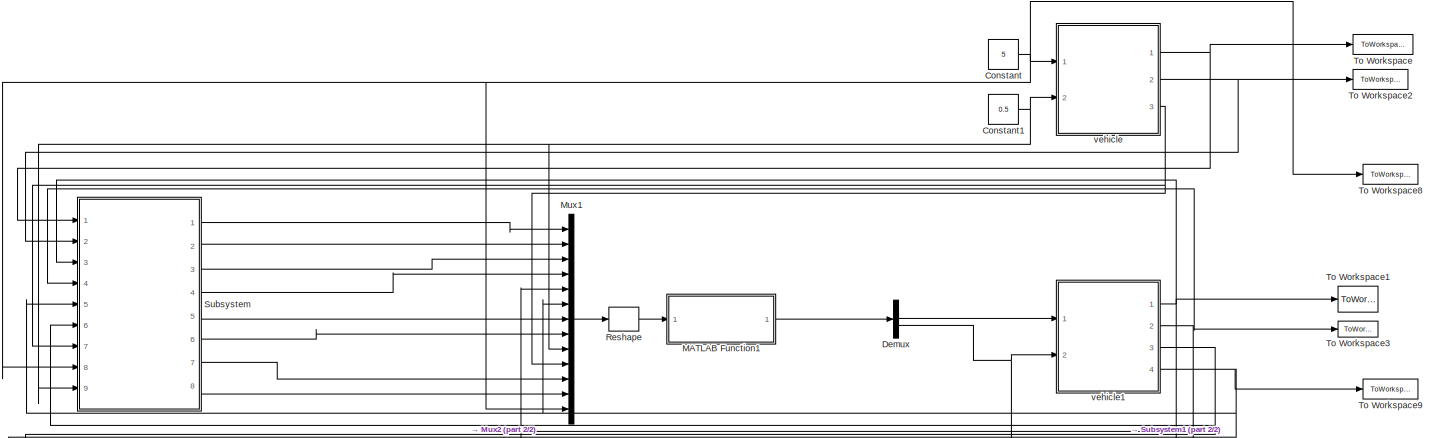
[diagram: root canvas - part 1/2, full width, top band]
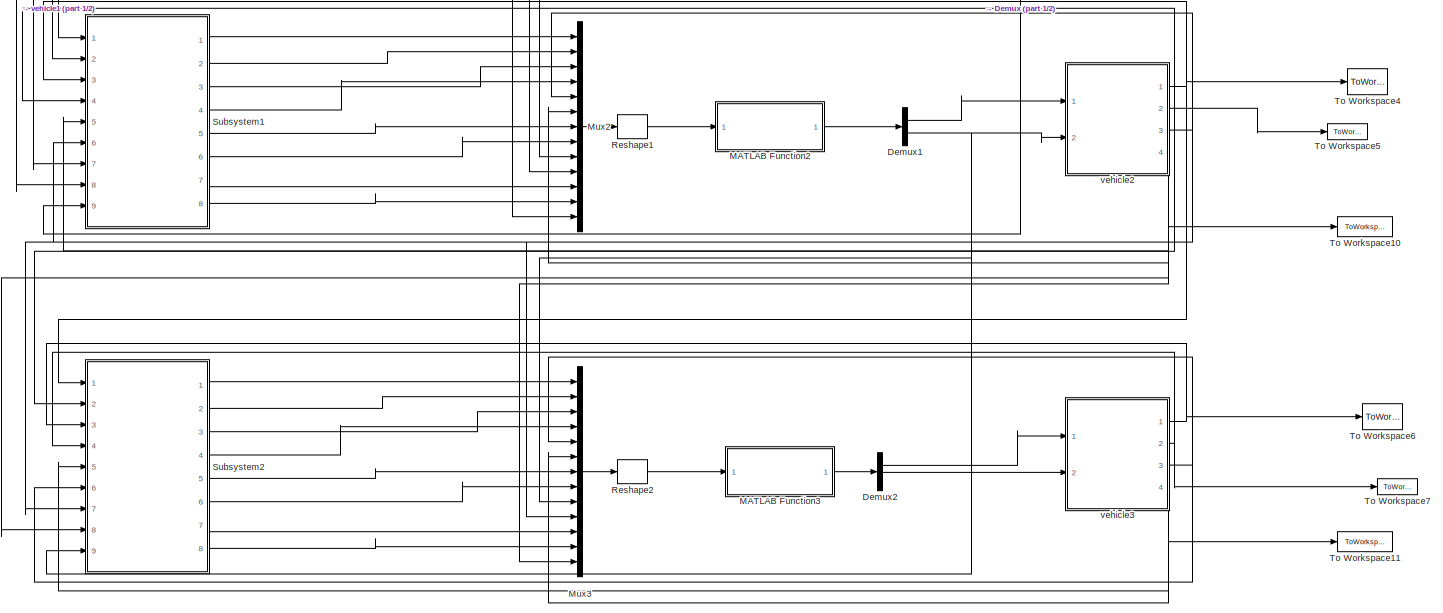
[diagram: root canvas - part 2/2, full width, bottom band]
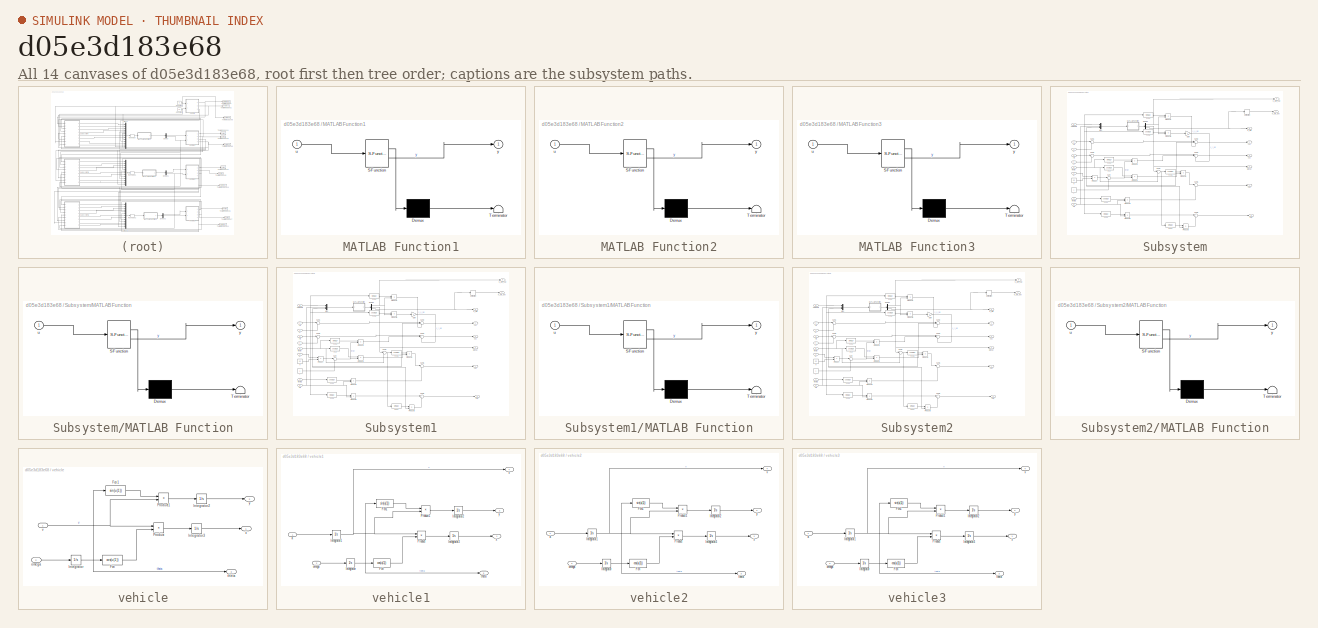
[diagram: thumbnail index - all 14 canvases of the model, root first then tree order]
MODEL slx_d05e3d183e68
KIND model
CONFIG AbsTol = auto
CONFIG EnableMultiTasking = off
CONFIG FixedStep = 0.01
CONFIG MaxStep = auto
CONFIG MinStep = auto
CONFIG RelTol = 1e-3
CONFIG SampleTimeConstraint = Unconstrained
CONFIG SolverName = FixedStepAuto
CONFIG StartTime = 0.0
CONFIG StopTime = 18
BLOCK [Constant] Constant
  Value = 5
BLOCK [Constant] Constant1
  Value = 0.5
BLOCK [Demux] Demux
  Outputs = 2
  Ports = [1, 2]
BLOCK [Demux] Demux1
  Outputs = 2
  Ports = [1, 2]
BLOCK [Demux] Demux2
  Outputs = 2
  Ports = [1, 2]
BLOCK [SubSystem] MATLAB Function1
  ErrorFcn = Stateflow.Translate.translate
  PermitHierarchicalResolution = ExplicitOnly
  Ports = [1, 1]
  RequestExecContextInheritance = off
  SFBlockType = MATLAB Function
  TreatAsAtomicUnit = on
BLOCK [Demux] MATLAB Function1/ Demux 
  Outputs = 1
  Ports = [1, 1]
BLOCK [S-Function] MATLAB Function1/ SFunction 
  EnableBusSupport = on
  FunctionName = sf_sfun
  PortCounts = [1 2]
  Ports = [1, 2]
  SFcnIsStateOwnerBlock = off
  SFunctionDeploymentMode = off
  Tag = Stateflow S-Function 1
BLOCK [Terminator] MATLAB Function1/ Terminator 
BLOCK [Inport] MATLAB Function1/u
BLOCK [Outport] MATLAB Function1/y
BLOCK [SubSystem] MATLAB Function2
  ErrorFcn = Stateflow.Translate.translate
  PermitHierarchicalResolution = ExplicitOnly
  Ports = [1, 1]
  RequestExecContextInheritance = off
  SFBlockType = MATLAB Function
  TreatAsAtomicUnit = on
BLOCK [Demux] MATLAB Function2/ Demux 
  Outputs = 1
  Ports = [1, 1]
BLOCK [S-Function] MATLAB Function2/ SFunction 
  EnableBusSupport = on
  FunctionName = sf_sfun
  PortCounts = [1 2]
  Ports = [1, 2]
  SFcnIsStateOwnerBlock = off
  SFunctionDeploymentMode = off
  Tag = Stateflow S-Function 3
BLOCK [Terminator] MATLAB Function2/ Terminator 
BLOCK [Inport] MATLAB Function2/u
BLOCK [Outport] MATLAB Function2/y
BLOCK [SubSystem] MATLAB Function3
  ErrorFcn = Stateflow.Translate.translate
  PermitHierarchicalResolution = ExplicitOnly
  Ports = [1, 1]
  RequestExecContextInheritance = off
  SFBlockType = MATLAB Function
  TreatAsAtomicUnit = on
BLOCK [Demux] MATLAB Function3/ Demux 
  Outputs = 1
  Ports = [1, 1]
BLOCK [S-Function] MATLAB Function3/ SFunction 
  EnableBusSupport = on
  FunctionName = sf_sfun
  PortCounts = [1 2]
  Ports = [1, 2]
  SFcnIsStateOwnerBlock = off
  SFunctionDeploymentMode = off
  Tag = Stateflow S-Function 6
BLOCK [Terminator] MATLAB Function3/ Terminator 
BLOCK [Inport] MATLAB Function3/u
BLOCK [Outport] MATLAB Function3/y
BLOCK [Mux] Mux1
  DisplayOption = bar
  Inputs = 13
  Ports = [13, 1]
BLOCK [Mux] Mux2
  DisplayOption = bar
  Inputs = 13
  Ports = [13, 1]
BLOCK [Mux] Mux3
  DisplayOption = bar
  Inputs = 13
  Ports = [13, 1]
BLOCK [Reshape] Reshape
  OutputDimensionality = Customize
  OutputDimensions = [1,13]
  Ports = [1, 1]
BLOCK [Reshape] Reshape1
  OutputDimensionality = Customize
  OutputDimensions = [1,13]
  Ports = [1, 1]
BLOCK [Reshape] Reshape2
  OutputDimensionality = Customize
  OutputDimensions = [1,13]
  Ports = [1, 1]
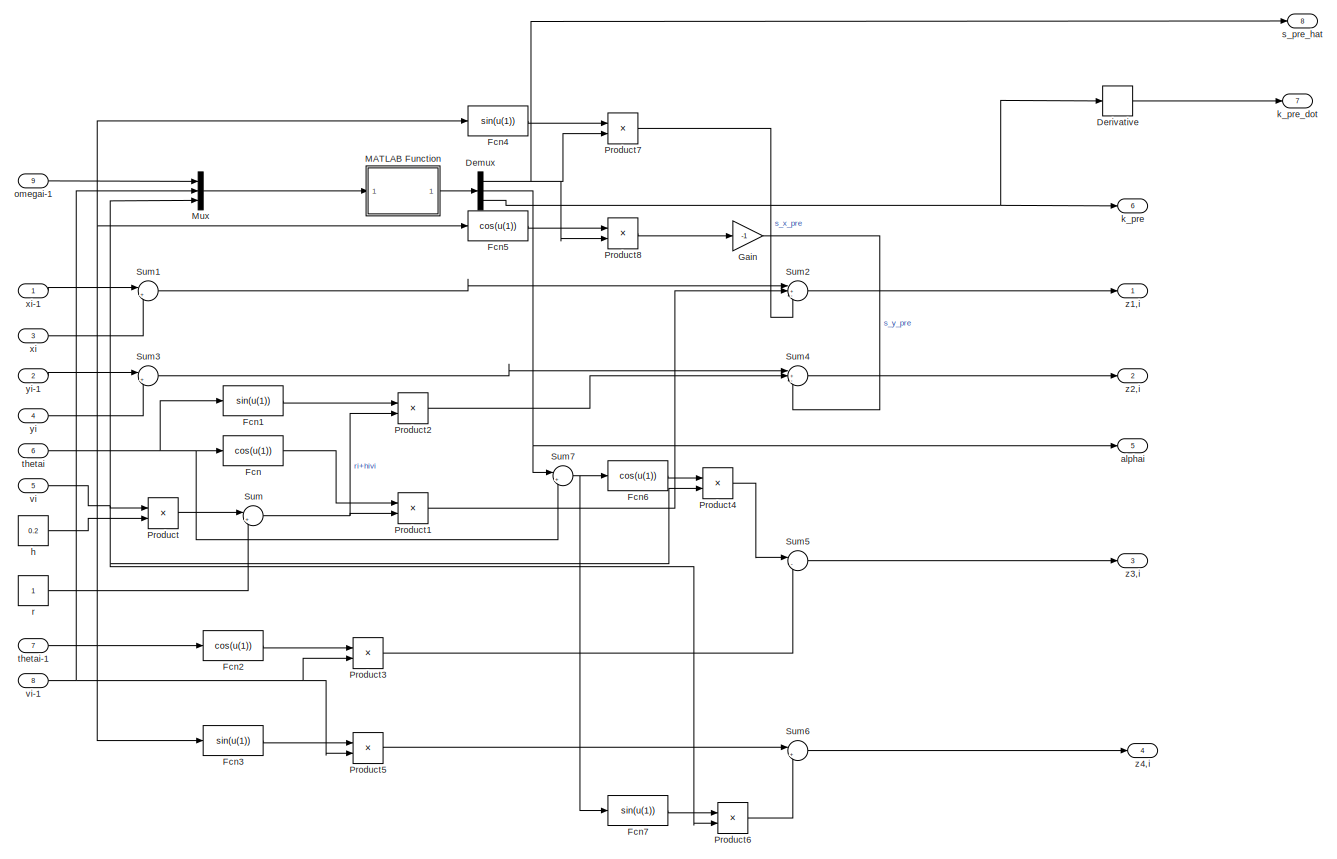
[diagram: Subsystem - part 1/1, most of the canvas]
BLOCK [SubSystem] Subsystem
  Ports = [9, 8]
  RequestExecContextInheritance = off
BLOCK [Demux] Subsystem/Demux
  Outputs = 3
  Ports = [1, 3]
BLOCK [Derivative] Subsystem/Derivative
BLOCK [Fcn] Subsystem/Fcn
  Expr = cos(u(1))
BLOCK [Fcn] Subsystem/Fcn1
  Expr = sin(u(1))
BLOCK [Fcn] Subsystem/Fcn2
  Expr = cos(u(1))
BLOCK [Fcn] Subsystem/Fcn3
  Expr = sin(u(1))
BLOCK [Fcn] Subsystem/Fcn4
  Expr = sin(u(1))
BLOCK [Fcn] Subsystem/Fcn5
  Expr = cos(u(1))
BLOCK [Fcn] Subsystem/Fcn6
  Expr = cos(u(1))
BLOCK [Fcn] Subsystem/Fcn7
  Expr = sin(u(1))
BLOCK [Gain] Subsystem/Gain
  Gain = -1
BLOCK [SubSystem] Subsystem/MATLAB Function
  ErrorFcn = Stateflow.Translate.translate
  PermitHierarchicalResolution = ExplicitOnly
  Ports = [1, 1]
  RequestExecContextInheritance = off
  SFBlockType = MATLAB Function
  TreatAsAtomicUnit = on
BLOCK [Demux] Subsystem/MATLAB Function/ Demux 
  Outputs = 1
  Ports = [1, 1]
BLOCK [S-Function] Subsystem/MATLAB Function/ SFunction 
  EnableBusSupport = on
  FunctionName = sf_sfun
  PortCounts = [1 2]
  Ports = [1, 2]
  SFcnIsStateOwnerBlock = off
  SFunctionDeploymentMode = off
  Tag = Stateflow S-Function 4
BLOCK [Terminator] Subsystem/MATLAB Function/ Terminator 
BLOCK [Inport] Subsystem/MATLAB Function/u
BLOCK [Outport] Subsystem/MATLAB Function/y
BLOCK [Mux] Subsystem/Mux
  DisplayOption = bar
  Inputs = 3
  Ports = [3, 1]
BLOCK [Product] Subsystem/Product
  Ports = [2, 1]
BLOCK [Product] Subsystem/Product1
  Ports = [2, 1]
BLOCK [Product] Subsystem/Product2
  Ports = [2, 1]
BLOCK [Product] Subsystem/Product3
  Ports = [2, 1]
BLOCK [Product] Subsystem/Product4
  Ports = [2, 1]
BLOCK [Product] Subsystem/Product5
  Ports = [2, 1]
BLOCK [Product] Subsystem/Product6
  Ports = [2, 1]
BLOCK [Product] Subsystem/Product7
  Ports = [2, 1]
BLOCK [Product] Subsystem/Product8
  Ports = [2, 1]
BLOCK [Sum] Subsystem/Sum
  Inputs = |++
  Ports = [2, 1]
BLOCK [Sum] Subsystem/Sum1
  Inputs = |+-
  Ports = [2, 1]
BLOCK [Sum] Subsystem/Sum2
  Inputs = |+-+
  Ports = [3, 1]
BLOCK [Sum] Subsystem/Sum3
  Inputs = |+-
  Ports = [2, 1]
BLOCK [Sum] Subsystem/Sum4
  Inputs = |+-+
  Ports = [3, 1]
BLOCK [Sum] Subsystem/Sum5
  Inputs = |-+
  Ports = [2, 1]
BLOCK [Sum] Subsystem/Sum6
  Inputs = |+-
  Ports = [2, 1]
BLOCK [Sum] Subsystem/Sum7
  Inputs = |++
  NameLocation = top
  Ports = [2, 1]
BLOCK [Outport] Subsystem/alphai
  Port = 5
BLOCK [Constant] Subsystem/h
  Value = 0.2
BLOCK [Outport] Subsystem/k_pre
  Port = 6
BLOCK [Outport] Subsystem/k_pre_dot
  Port = 7
BLOCK [Inport] Subsystem/omegai-1
  Port = 9
BLOCK [Constant] Subsystem/r
BLOCK [Outport] Subsystem/s_pre_hat
  Port = 8
BLOCK [Inport] Subsystem/thetai
  Port = 6
BLOCK [Inport] Subsystem/thetai-1
  Port = 7
BLOCK [Inport] Subsystem/vi
  Port = 5
BLOCK [Inport] Subsystem/vi-1
  Port = 8
BLOCK [Inport] Subsystem/xi
  Port = 3
BLOCK [Inport] Subsystem/xi-1
BLOCK [Inport] Subsystem/yi
  Port = 4
BLOCK [Inport] Subsystem/yi-1
  Port = 2
BLOCK [Outport] Subsystem/z1,i
BLOCK [Outport] Subsystem/z2,i
  Port = 2
BLOCK [Outport] Subsystem/z3,i
  Port = 3
BLOCK [Outport] Subsystem/z4,i
  Port = 4
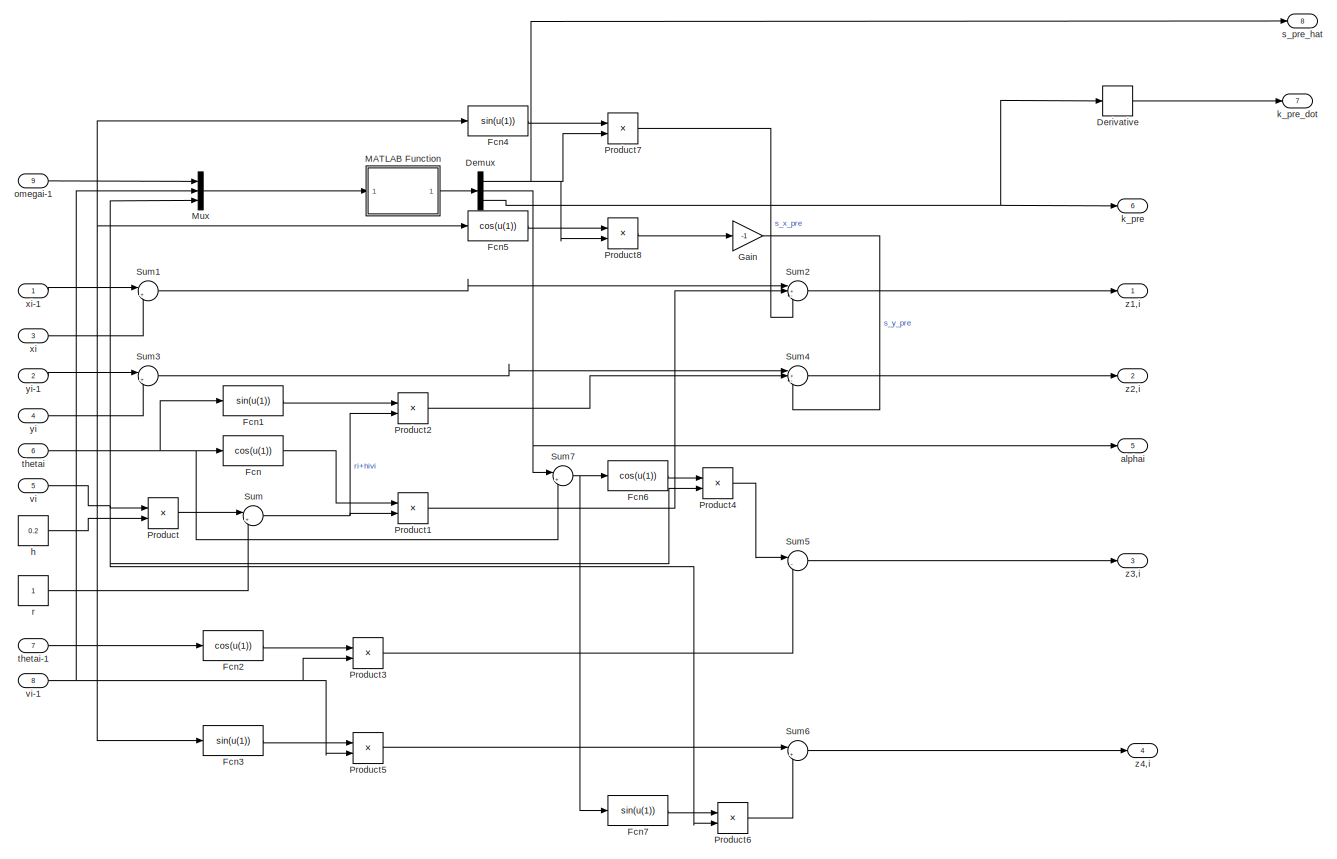
[diagram: Subsystem1 - part 1/1, most of the canvas]
BLOCK [SubSystem] Subsystem1
  Ports = [9, 8]
  RequestExecContextInheritance = off
BLOCK [Demux] Subsystem1/Demux
  Outputs = 3
  Ports = [1, 3]
BLOCK [Derivative] Subsystem1/Derivative
BLOCK [Fcn] Subsystem1/Fcn
  Expr = cos(u(1))
BLOCK [Fcn] Subsystem1/Fcn1
  Expr = sin(u(1))
BLOCK [Fcn] Subsystem1/Fcn2
  Expr = cos(u(1))
BLOCK [Fcn] Subsystem1/Fcn3
  Expr = sin(u(1))
BLOCK [Fcn] Subsystem1/Fcn4
  Expr = sin(u(1))
BLOCK [Fcn] Subsystem1/Fcn5
  Expr = cos(u(1))
BLOCK [Fcn] Subsystem1/Fcn6
  Expr = cos(u(1))
BLOCK [Fcn] Subsystem1/Fcn7
  Expr = sin(u(1))
BLOCK [Gain] Subsystem1/Gain
  Gain = -1
BLOCK [SubSystem] Subsystem1/MATLAB Function
  ErrorFcn = Stateflow.Translate.translate
  PermitHierarchicalResolution = ExplicitOnly
  Ports = [1, 1]
  RequestExecContextInheritance = off
  SFBlockType = MATLAB Function
  TreatAsAtomicUnit = on
BLOCK [Demux] Subsystem1/MATLAB Function/ Demux 
  Outputs = 1
  Ports = [1, 1]
BLOCK [S-Function] Subsystem1/MATLAB Function/ SFunction 
  EnableBusSupport = on
  FunctionName = sf_sfun
  PortCounts = [1 2]
  Ports = [1, 2]
  SFcnIsStateOwnerBlock = off
  SFunctionDeploymentMode = off
  Tag = Stateflow S-Function 2
BLOCK [Terminator] Subsystem1/MATLAB Function/ Terminator 
BLOCK [Inport] Subsystem1/MATLAB Function/u
BLOCK [Outport] Subsystem1/MATLAB Function/y
BLOCK [Mux] Subsystem1/Mux
  DisplayOption = bar
  Inputs = 3
  Ports = [3, 1]
BLOCK [Product] Subsystem1/Product
  Ports = [2, 1]
BLOCK [Product] Subsystem1/Product1
  Ports = [2, 1]
BLOCK [Product] Subsystem1/Product2
  Ports = [2, 1]
BLOCK [Product] Subsystem1/Product3
  Ports = [2, 1]
BLOCK [Product] Subsystem1/Product4
  Ports = [2, 1]
BLOCK [Product] Subsystem1/Product5
  Ports = [2, 1]
BLOCK [Product] Subsystem1/Product6
  Ports = [2, 1]
BLOCK [Product] Subsystem1/Product7
  Ports = [2, 1]
BLOCK [Product] Subsystem1/Product8
  Ports = [2, 1]
BLOCK [Sum] Subsystem1/Sum
  Inputs = |++
  Ports = [2, 1]
BLOCK [Sum] Subsystem1/Sum1
  Inputs = |+-
  Ports = [2, 1]
BLOCK [Sum] Subsystem1/Sum2
  Inputs = |+-+
  Ports = [3, 1]
BLOCK [Sum] Subsystem1/Sum3
  Inputs = |+-
  Ports = [2, 1]
BLOCK [Sum] Subsystem1/Sum4
  Inputs = |+-+
  Ports = [3, 1]
BLOCK [Sum] Subsystem1/Sum5
  Inputs = |-+
  Ports = [2, 1]
BLOCK [Sum] Subsystem1/Sum6
  Inputs = |+-
  Ports = [2, 1]
BLOCK [Sum] Subsystem1/Sum7
  Inputs = |++
  NameLocation = top
  Ports = [2, 1]
BLOCK [Outport] Subsystem1/alphai
  Port = 5
BLOCK [Constant] Subsystem1/h
  Value = 0.2
BLOCK [Outport] Subsystem1/k_pre
  Port = 6
BLOCK [Outport] Subsystem1/k_pre_dot
  Port = 7
BLOCK [Inport] Subsystem1/omegai-1
  Port = 9
BLOCK [Constant] Subsystem1/r
BLOCK [Outport] Subsystem1/s_pre_hat
  Port = 8
BLOCK [Inport] Subsystem1/thetai
  Port = 6
BLOCK [Inport] Subsystem1/thetai-1
  Port = 7
BLOCK [Inport] Subsystem1/vi
  Port = 5
BLOCK [Inport] Subsystem1/vi-1
  Port = 8
BLOCK [Inport] Subsystem1/xi
  Port = 3
BLOCK [Inport] Subsystem1/xi-1
BLOCK [Inport] Subsystem1/yi
  Port = 4
BLOCK [Inport] Subsystem1/yi-1
  Port = 2
BLOCK [Outport] Subsystem1/z1,i
BLOCK [Outport] Subsystem1/z2,i
  Port = 2
BLOCK [Outport] Subsystem1/z3,i
  Port = 3
BLOCK [Outport] Subsystem1/z4,i
  Port = 4
BLOCK [SubSystem] Subsystem2
  Ports = [9, 8]
  RequestExecContextInheritance = off
BLOCK [Demux] Subsystem2/Demux
  Outputs = 3
  Ports = [1, 3]
BLOCK [Derivative] Subsystem2/Derivative
BLOCK [Fcn] Subsystem2/Fcn
  Expr = cos(u(1))
BLOCK [Fcn] Subsystem2/Fcn1
  Expr = sin(u(1))
BLOCK [Fcn] Subsystem2/Fcn2
  Expr = cos(u(1))
BLOCK [Fcn] Subsystem2/Fcn3
  Expr = sin(u(1))
BLOCK [Fcn] Subsystem2/Fcn4
  Expr = sin(u(1))
BLOCK [Fcn] Subsystem2/Fcn5
  Expr = cos(u(1))
BLOCK [Fcn] Subsystem2/Fcn6
  Expr = cos(u(1))
BLOCK [Fcn] Subsystem2/Fcn7
  Expr = sin(u(1))
BLOCK [Gain] Subsystem2/Gain
  Gain = -1
BLOCK [SubSystem] Subsystem2/MATLAB Function
  ErrorFcn = Stateflow.Translate.translate
  PermitHierarchicalResolution = ExplicitOnly
  Ports = [1, 1]
  RequestExecContextInheritance = off
  SFBlockType = MATLAB Function
  TreatAsAtomicUnit = on
BLOCK [Demux] Subsystem2/MATLAB Function/ Demux 
  Outputs = 1
  Ports = [1, 1]
BLOCK [S-Function] Subsystem2/MATLAB Function/ SFunction 
  EnableBusSupport = on
  FunctionName = sf_sfun
  PortCounts = [1 2]
  Ports = [1, 2]
  SFcnIsStateOwnerBlock = off
  SFunctionDeploymentMode = off
  Tag = Stateflow S-Function 5
BLOCK [Terminator] Subsystem2/MATLAB Function/ Terminator 
BLOCK [Inport] Subsystem2/MATLAB Function/u
BLOCK [Outport] Subsystem2/MATLAB Function/y
BLOCK [Mux] Subsystem2/Mux
  DisplayOption = bar
  Inputs = 3
  Ports = [3, 1]
BLOCK [Product] Subsystem2/Product
  Ports = [2, 1]
BLOCK [Product] Subsystem2/Product1
  Ports = [2, 1]
BLOCK [Product] Subsystem2/Product2
  Ports = [2, 1]
BLOCK [Product] Subsystem2/Product3
  Ports = [2, 1]
BLOCK [Product] Subsystem2/Product4
  Ports = [2, 1]
BLOCK [Product] Subsystem2/Product5
  Ports = [2, 1]
BLOCK [Product] Subsystem2/Product6
  Ports = [2, 1]
BLOCK [Product] Subsystem2/Product7
  Ports = [2, 1]
BLOCK [Product] Subsystem2/Product8
  Ports = [2, 1]
BLOCK [Sum] Subsystem2/Sum
  Inputs = |++
  Ports = [2, 1]
BLOCK [Sum] Subsystem2/Sum1
  Inputs = |+-
  Ports = [2, 1]
BLOCK [Sum] Subsystem2/Sum2
  Inputs = |+-+
  Ports = [3, 1]
BLOCK [Sum] Subsystem2/Sum3
  Inputs = |+-
  Ports = [2, 1]
BLOCK [Sum] Subsystem2/Sum4
  Inputs = |+-+
  Ports = [3, 1]
BLOCK [Sum] Subsystem2/Sum5
  Inputs = |-+
  Ports = [2, 1]
BLOCK [Sum] Subsystem2/Sum6
  Inputs = |+-
  Ports = [2, 1]
BLOCK [Sum] Subsystem2/Sum7
  Inputs = |++
  NameLocation = top
  Ports = [2, 1]
BLOCK [Outport] Subsystem2/alphai
  Port = 5
BLOCK [Constant] Subsystem2/h
  Value = 0.2
BLOCK [Outport] Subsystem2/k_pre
  Port = 6
BLOCK [Outport] Subsystem2/k_pre_dot
  Port = 7
BLOCK [Inport] Subsystem2/omegai-1
  Port = 9
BLOCK [Constant] Subsystem2/r
BLOCK [Outport] Subsystem2/s_pre_hat
  Port = 8
BLOCK [Inport] Subsystem2/thetai
  Port = 6
BLOCK [Inport] Subsystem2/thetai-1
  Port = 7
BLOCK [Inport] Subsystem2/vi
  Port = 5
BLOCK [Inport] Subsystem2/vi-1
  Port = 8
BLOCK [Inport] Subsystem2/xi
  Port = 3
BLOCK [Inport] Subsystem2/xi-1
BLOCK [Inport] Subsystem2/yi
  Port = 4
BLOCK [Inport] Subsystem2/yi-1
  Port = 2
BLOCK [Outport] Subsystem2/z1,i
BLOCK [Outport] Subsystem2/z2,i
  Port = 2
BLOCK [Outport] Subsystem2/z3,i
  Port = 3
BLOCK [Outport] Subsystem2/z4,i
  Port = 4
BLOCK [ToWorkspace] To Workspace
  FixptAsFi = on
  MaxDataPoints = inf
  Ports = [1]
  SampleTime = -1
  Save2DSignal = 2-D array (concatenate along first dimension)
  VariableName = x1
BLOCK [ToWorkspace] To Workspace1
  FixptAsFi = on
  MaxDataPoints = inf
  Ports = [1]
  SampleTime = -1
  Save2DSignal = 2-D array (concatenate along first dimension)
  VariableName = x2
BLOCK [ToWorkspace] To Workspace10
  FixptAsFi = on
  MaxDataPoints = inf
  Ports = [1]
  SampleTime = -1
  Save2DSignal = 2-D array (concatenate along first dimension)
  SaveFormat = Timeseries
  VariableName = v3
BLOCK [ToWorkspace] To Workspace11
  FixptAsFi = on
  MaxDataPoints = inf
  Ports = [1]
  SampleTime = -1
  Save2DSignal = 2-D array (concatenate along first dimension)
  SaveFormat = Timeseries
  VariableName = v4
BLOCK [ToWorkspace] To Workspace2
  FixptAsFi = on
  MaxDataPoints = inf
  Ports = [1]
  SampleTime = -1
  Save2DSignal = 2-D array (concatenate along first dimension)
  VariableName = y1
BLOCK [ToWorkspace] To Workspace3
  FixptAsFi = on
  MaxDataPoints = inf
  Ports = [1]
  SampleTime = -1
  Save2DSignal = 2-D array (concatenate along first dimension)
  VariableName = y2
BLOCK [ToWorkspace] To Workspace4
  FixptAsFi = on
  MaxDataPoints = inf
  Ports = [1]
  SampleTime = -1
  Save2DSignal = 2-D array (concatenate along first dimension)
  VariableName = x3
BLOCK [ToWorkspace] To Workspace5
  FixptAsFi = on
  MaxDataPoints = inf
  Ports = [1]
  SampleTime = -1
  Save2DSignal = 2-D array (concatenate along first dimension)
  VariableName = y3
BLOCK [ToWorkspace] To Workspace6
  FixptAsFi = on
  MaxDataPoints = inf
  Ports = [1]
  SampleTime = -1
  Save2DSignal = 2-D array (concatenate along first dimension)
  VariableName = x4
BLOCK [ToWorkspace] To Workspace7
  FixptAsFi = on
  MaxDataPoints = inf
  Ports = [1]
  SampleTime = -1
  Save2DSignal = 2-D array (concatenate along first dimension)
  VariableName = y4
BLOCK [ToWorkspace] To Workspace8
  FixptAsFi = on
  MaxDataPoints = inf
  Ports = [1]
  SampleTime = -1
  Save2DSignal = 2-D array (concatenate along first dimension)
  SaveFormat = Timeseries
  VariableName = v1
BLOCK [ToWorkspace] To Workspace9
  FixptAsFi = on
  MaxDataPoints = inf
  Ports = [1]
  SampleTime = -1
  Save2DSignal = 2-D array (concatenate along first dimension)
  SaveFormat = Timeseries
  VariableName = v2
BLOCK [SubSystem] vehicle
  Ports = [2, 3]
  RequestExecContextInheritance = off
BLOCK [Fcn] vehicle/Fcn
  Expr = cos(u(1))
BLOCK [Fcn] vehicle/Fcn1
  Expr = sin(u(1))
BLOCK [Integrator] vehicle/Integrator
  Ports = [1, 1]
BLOCK [Integrator] vehicle/Integrator2
  Ports = [1, 1]
BLOCK [Integrator] vehicle/Integrator3
  Ports = [1, 1]
BLOCK [Product] vehicle/Product
  Ports = [2, 1]
BLOCK [Product] vehicle/Product1
  Ports = [2, 1]
BLOCK [Inport] vehicle/omega
  Port = 2
BLOCK [Outport] vehicle/theta
  Port = 3
BLOCK [Inport] vehicle/v
BLOCK [Outport] vehicle/x
BLOCK [Outport] vehicle/y
  Port = 2
BLOCK [SubSystem] vehicle1
  Ports = [2, 4]
  RequestExecContextInheritance = off
BLOCK [Fcn] vehicle1/Fcn
  Expr = cos(u(1))
BLOCK [Fcn] vehicle1/Fcn1
  Expr = sin(u(1))
BLOCK [Integrator] vehicle1/Integrator
  Ports = [1, 1]
BLOCK [Integrator] vehicle1/Integrator1
  InitialCondition = 5
  LowerSaturationLimit = 0
  Ports = [1, 1]
BLOCK [Integrator] vehicle1/Integrator2
  InitialCondition = 2
  Ports = [1, 1]
BLOCK [Integrator] vehicle1/Integrator3
  InitialCondition = -2
  Ports = [1, 1]
BLOCK [Product] vehicle1/Product
  Ports = [2, 1]
BLOCK [Product] vehicle1/Product1
  Ports = [2, 1]
BLOCK [Inport] vehicle1/a
BLOCK [Inport] vehicle1/omega
  Port = 2
BLOCK [Outport] vehicle1/theta
  Port = 3
BLOCK [Outport] vehicle1/v
  Port = 4
BLOCK [Outport] vehicle1/x
BLOCK [Outport] vehicle1/y
  Port = 2
BLOCK [SubSystem] vehicle2
  Ports = [2, 4]
  RequestExecContextInheritance = off
BLOCK [Fcn] vehicle2/Fcn
  Expr = cos(u(1))
BLOCK [Fcn] vehicle2/Fcn1
  Expr = sin(u(1))
BLOCK [Integrator] vehicle2/Integrator
  Ports = [1, 1]
BLOCK [Integrator] vehicle2/Integrator1
  InitialCondition = 5
  Ports = [1, 1]
BLOCK [Integrator] vehicle2/Integrator2
  InitialCondition = 4
  Ports = [1, 1]
BLOCK [Integrator] vehicle2/Integrator3
  InitialCondition = -4
  Ports = [1, 1]
BLOCK [Product] vehicle2/Product
  Ports = [2, 1]
BLOCK [Product] vehicle2/Product1
  Ports = [2, 1]
BLOCK [Inport] vehicle2/a
BLOCK [Inport] vehicle2/omega
  Port = 2
BLOCK [Outport] vehicle2/theta
  Port = 3
BLOCK [Outport] vehicle2/v
  Port = 4
BLOCK [Outport] vehicle2/x
BLOCK [Outport] vehicle2/y
  Port = 2
BLOCK [SubSystem] vehicle3
  Ports = [2, 4]
  RequestExecContextInheritance = off
BLOCK [Fcn] vehicle3/Fcn
  Expr = cos(u(1))
BLOCK [Fcn] vehicle3/Fcn1
  Expr = sin(u(1))
BLOCK [Integrator] vehicle3/Integrator
  Ports = [1, 1]
BLOCK [Integrator] vehicle3/Integrator1
  InitialCondition = 5
  Ports = [1, 1]
BLOCK [Integrator] vehicle3/Integrator2
  InitialCondition = 6
  Ports = [1, 1]
BLOCK [Integrator] vehicle3/Integrator3
  InitialCondition = -6
  Ports = [1, 1]
BLOCK [Product] vehicle3/Product
  Ports = [2, 1]
BLOCK [Product] vehicle3/Product1
  Ports = [2, 1]
BLOCK [Inport] vehicle3/a
BLOCK [Inport] vehicle3/omega
  Port = 2
BLOCK [Outport] vehicle3/theta
  Port = 3
BLOCK [Outport] vehicle3/v
  Port = 4
BLOCK [Outport] vehicle3/x
BLOCK [Outport] vehicle3/y
  Port = 2
NET Constant1:1 -> Mux1:9, Subsystem:9, vehicle:2
NET Constant:1 -> Mux1:13, Subsystem:8, To Workspace8:1, vehicle:1
LINE Demux1:1 -> vehicle2:1
NET Demux1:2 -> Mux3:9, Subsystem2:9, vehicle2:2
LINE Demux2:1 -> vehicle3:1
LINE Demux2:2 -> vehicle3:2
LINE Demux:1 -> vehicle1:1
NET Demux:2 -> Mux2:9, Subsystem1:9, vehicle1:2
LINE MATLAB Function1:1 -> Demux:1
LINE MATLAB Function2:1 -> Demux1:1
LINE MATLAB Function3:1 -> Demux2:1
LINE Mux1:1 -> Reshape:1
LINE Mux2:1 -> Reshape1:1
LINE Mux3:1 -> Reshape2:1
LINE Reshape1:1 -> MATLAB Function2:1
LINE Reshape2:1 -> MATLAB Function3:1
LINE Reshape:1 -> MATLAB Function1:1
NET Subsystem/Demux:1 -> Subsystem/Product7:2, Subsystem/Product8:2, Subsystem/s_pre_hat:1
NET Subsystem/Demux:2 -> Subsystem/Sum7:1, Subsystem/alphai:1
NET Subsystem/Demux:3 -> Subsystem/Derivative:1, Subsystem/k_pre:1
LINE Subsystem/Derivative:1 -> Subsystem/k_pre_dot:1
LINE Subsystem/Fcn1:1 -> Subsystem/Product2:1
LINE Subsystem/Fcn2:1 -> Subsystem/Product3:1
LINE Subsystem/Fcn3:1 -> Subsystem/Product5:1
LINE Subsystem/Fcn4:1 -> Subsystem/Product7:1
LINE Subsystem/Fcn5:1 -> Subsystem/Product8:1
LINE Subsystem/Fcn6:1 -> Subsystem/Product4:1
LINE Subsystem/Fcn7:1 -> Subsystem/Product6:1
LINE Subsystem/Fcn:1 -> Subsystem/Product1:1
LINE Subsystem/Gain:1 -> Subsystem/Sum4:3
LINE Subsystem/MATLAB Function:1 -> Subsystem/Demux:1
LINE Subsystem/Mux:1 -> Subsystem/MATLAB Function:1
LINE Subsystem/Product1:1 -> Subsystem/Sum2:2
LINE Subsystem/Product2:1 -> Subsystem/Sum4:2
LINE Subsystem/Product3:1 -> Subsystem/Sum5:2
LINE Subsystem/Product4:1 -> Subsystem/Sum5:1
LINE Subsystem/Product5:1 -> Subsystem/Sum6:1
LINE Subsystem/Product6:1 -> Subsystem/Sum6:2
LINE Subsystem/Product7:1 -> Subsystem/Sum2:3
LINE Subsystem/Product8:1 -> Subsystem/Gain:1
LINE Subsystem/Product:1 -> Subsystem/Sum:1
LINE Subsystem/Sum1:1 -> Subsystem/Sum2:1
LINE Subsystem/Sum2:1 -> Subsystem/z1,i:1
LINE Subsystem/Sum3:1 -> Subsystem/Sum4:1
LINE Subsystem/Sum4:1 -> Subsystem/z2,i:1
LINE Subsystem/Sum5:1 -> Subsystem/z3,i:1
LINE Subsystem/Sum6:1 -> Subsystem/z4,i:1
NET Subsystem/Sum7:1 -> Subsystem/Fcn6:1, Subsystem/Fcn7:1
NET Subsystem/Sum:1 -> Subsystem/Product1:2, Subsystem/Product2:2
LINE Subsystem/h:1 -> Subsystem/Product:2
LINE Subsystem/omegai-1:1 -> Subsystem/Mux:1
LINE Subsystem/r:1 -> Subsystem/Sum:2
NET Subsystem/thetai-1:1 -> Subsystem/Fcn2:1, Subsystem/Fcn3:1, Subsystem/Fcn4:1, Subsystem/Fcn5:1
NET Subsystem/thetai:1 -> Subsystem/Fcn1:1, Subsystem/Fcn:1, Subsystem/Sum7:2
NET Subsystem/vi-1:1 -> Subsystem/Mux:2, Subsystem/Product3:2, Subsystem/Product5:2
NET Subsystem/vi:1 -> Subsystem/Mux:3, Subsystem/Product4:2, Subsystem/Product6:2, Subsystem/Product:1
LINE Subsystem/xi-1:1 -> Subsystem/Sum1:1
LINE Subsystem/xi:1 -> Subsystem/Sum1:2
LINE Subsystem/yi-1:1 -> Subsystem/Sum3:1
LINE Subsystem/yi:1 -> Subsystem/Sum3:2
NET Subsystem1/Demux:1 -> Subsystem1/Product7:2, Subsystem1/Product8:2, Subsystem1/s_pre_hat:1
NET Subsystem1/Demux:2 -> Subsystem1/Sum7:1, Subsystem1/alphai:1
NET Subsystem1/Demux:3 -> Subsystem1/Derivative:1, Subsystem1/k_pre:1
LINE Subsystem1/Derivative:1 -> Subsystem1/k_pre_dot:1
LINE Subsystem1/Fcn1:1 -> Subsystem1/Product2:1
LINE Subsystem1/Fcn2:1 -> Subsystem1/Product3:1
LINE Subsystem1/Fcn3:1 -> Subsystem1/Product5:1
LINE Subsystem1/Fcn4:1 -> Subsystem1/Product7:1
LINE Subsystem1/Fcn5:1 -> Subsystem1/Product8:1
LINE Subsystem1/Fcn6:1 -> Subsystem1/Product4:1
LINE Subsystem1/Fcn7:1 -> Subsystem1/Product6:1
LINE Subsystem1/Fcn:1 -> Subsystem1/Product1:1
LINE Subsystem1/Gain:1 -> Subsystem1/Sum4:3
LINE Subsystem1/MATLAB Function:1 -> Subsystem1/Demux:1
LINE Subsystem1/Mux:1 -> Subsystem1/MATLAB Function:1
LINE Subsystem1/Product1:1 -> Subsystem1/Sum2:2
LINE Subsystem1/Product2:1 -> Subsystem1/Sum4:2
LINE Subsystem1/Product3:1 -> Subsystem1/Sum5:2
LINE Subsystem1/Product4:1 -> Subsystem1/Sum5:1
LINE Subsystem1/Product5:1 -> Subsystem1/Sum6:1
LINE Subsystem1/Product6:1 -> Subsystem1/Sum6:2
LINE Subsystem1/Product7:1 -> Subsystem1/Sum2:3
LINE Subsystem1/Product8:1 -> Subsystem1/Gain:1
LINE Subsystem1/Product:1 -> Subsystem1/Sum:1
LINE Subsystem1/Sum1:1 -> Subsystem1/Sum2:1
LINE Subsystem1/Sum2:1 -> Subsystem1/z1,i:1
LINE Subsystem1/Sum3:1 -> Subsystem1/Sum4:1
LINE Subsystem1/Sum4:1 -> Subsystem1/z2,i:1
LINE Subsystem1/Sum5:1 -> Subsystem1/z3,i:1
LINE Subsystem1/Sum6:1 -> Subsystem1/z4,i:1
NET Subsystem1/Sum7:1 -> Subsystem1/Fcn6:1, Subsystem1/Fcn7:1
NET Subsystem1/Sum:1 -> Subsystem1/Product1:2, Subsystem1/Product2:2
LINE Subsystem1/h:1 -> Subsystem1/Product:2
LINE Subsystem1/omegai-1:1 -> Subsystem1/Mux:1
LINE Subsystem1/r:1 -> Subsystem1/Sum:2
NET Subsystem1/thetai-1:1 -> Subsystem1/Fcn2:1, Subsystem1/Fcn3:1, Subsystem1/Fcn4:1, Subsystem1/Fcn5:1
NET Subsystem1/thetai:1 -> Subsystem1/Fcn1:1, Subsystem1/Fcn:1, Subsystem1/Sum7:2
NET Subsystem1/vi-1:1 -> Subsystem1/Mux:2, Subsystem1/Product3:2, Subsystem1/Product5:2
NET Subsystem1/vi:1 -> Subsystem1/Mux:3, Subsystem1/Product4:2, Subsystem1/Product6:2, Subsystem1/Product:1
LINE Subsystem1/xi-1:1 -> Subsystem1/Sum1:1
LINE Subsystem1/xi:1 -> Subsystem1/Sum1:2
LINE Subsystem1/yi-1:1 -> Subsystem1/Sum3:1
LINE Subsystem1/yi:1 -> Subsystem1/Sum3:2
LINE Subsystem1:1 -> Mux2:1
LINE Subsystem1:2 -> Mux2:2
LINE Subsystem1:3 -> Mux2:3
LINE Subsystem1:4 -> Mux2:4
LINE Subsystem1:5 -> Mux2:7
LINE Subsystem1:6 -> Mux2:8
LINE Subsystem1:7 -> Mux2:11
LINE Subsystem1:8 -> Mux2:12
NET Subsystem2/Demux:1 -> Subsystem2/Product7:2, Subsystem2/Product8:2, Subsystem2/s_pre_hat:1
NET Subsystem2/Demux:2 -> Subsystem2/Sum7:1, Subsystem2/alphai:1
NET Subsystem2/Demux:3 -> Subsystem2/Derivative:1, Subsystem2/k_pre:1
LINE Subsystem2/Derivative:1 -> Subsystem2/k_pre_dot:1
LINE Subsystem2/Fcn1:1 -> Subsystem2/Product2:1
LINE Subsystem2/Fcn2:1 -> Subsystem2/Product3:1
LINE Subsystem2/Fcn3:1 -> Subsystem2/Product5:1
LINE Subsystem2/Fcn4:1 -> Subsystem2/Product7:1
LINE Subsystem2/Fcn5:1 -> Subsystem2/Product8:1
LINE Subsystem2/Fcn6:1 -> Subsystem2/Product4:1
LINE Subsystem2/Fcn7:1 -> Subsystem2/Product6:1
LINE Subsystem2/Fcn:1 -> Subsystem2/Product1:1
LINE Subsystem2/Gain:1 -> Subsystem2/Sum4:3
LINE Subsystem2/MATLAB Function:1 -> Subsystem2/Demux:1
LINE Subsystem2/Mux:1 -> Subsystem2/MATLAB Function:1
LINE Subsystem2/Product1:1 -> Subsystem2/Sum2:2
LINE Subsystem2/Product2:1 -> Subsystem2/Sum4:2
LINE Subsystem2/Product3:1 -> Subsystem2/Sum5:2
LINE Subsystem2/Product4:1 -> Subsystem2/Sum5:1
LINE Subsystem2/Product5:1 -> Subsystem2/Sum6:1
LINE Subsystem2/Product6:1 -> Subsystem2/Sum6:2
LINE Subsystem2/Product7:1 -> Subsystem2/Sum2:3
LINE Subsystem2/Product8:1 -> Subsystem2/Gain:1
LINE Subsystem2/Product:1 -> Subsystem2/Sum:1
LINE Subsystem2/Sum1:1 -> Subsystem2/Sum2:1
LINE Subsystem2/Sum2:1 -> Subsystem2/z1,i:1
LINE Subsystem2/Sum3:1 -> Subsystem2/Sum4:1
LINE Subsystem2/Sum4:1 -> Subsystem2/z2,i:1
LINE Subsystem2/Sum5:1 -> Subsystem2/z3,i:1
LINE Subsystem2/Sum6:1 -> Subsystem2/z4,i:1
NET Subsystem2/Sum7:1 -> Subsystem2/Fcn6:1, Subsystem2/Fcn7:1
NET Subsystem2/Sum:1 -> Subsystem2/Product1:2, Subsystem2/Product2:2
LINE Subsystem2/h:1 -> Subsystem2/Product:2
LINE Subsystem2/omegai-1:1 -> Subsystem2/Mux:1
LINE Subsystem2/r:1 -> Subsystem2/Sum:2
NET Subsystem2/thetai-1:1 -> Subsystem2/Fcn2:1, Subsystem2/Fcn3:1, Subsystem2/Fcn4:1, Subsystem2/Fcn5:1
NET Subsystem2/thetai:1 -> Subsystem2/Fcn1:1, Subsystem2/Fcn:1, Subsystem2/Sum7:2
NET Subsystem2/vi-1:1 -> Subsystem2/Mux:2, Subsystem2/Product3:2, Subsystem2/Product5:2
NET Subsystem2/vi:1 -> Subsystem2/Mux:3, Subsystem2/Product4:2, Subsystem2/Product6:2, Subsystem2/Product:1
LINE Subsystem2/xi-1:1 -> Subsystem2/Sum1:1
LINE Subsystem2/xi:1 -> Subsystem2/Sum1:2
LINE Subsystem2/yi-1:1 -> Subsystem2/Sum3:1
LINE Subsystem2/yi:1 -> Subsystem2/Sum3:2
LINE Subsystem2:1 -> Mux3:1
LINE Subsystem2:2 -> Mux3:2
LINE Subsystem2:3 -> Mux3:3
LINE Subsystem2:4 -> Mux3:4
LINE Subsystem2:5 -> Mux3:7
LINE Subsystem2:6 -> Mux3:8
LINE Subsystem2:7 -> Mux3:11
LINE Subsystem2:8 -> Mux3:12
LINE Subsystem:1 -> Mux1:1
LINE Subsystem:2 -> Mux1:2
LINE Subsystem:3 -> Mux1:3
LINE Subsystem:4 -> Mux1:4
LINE Subsystem:5 -> Mux1:7
LINE Subsystem:6 -> Mux1:8
LINE Subsystem:7 -> Mux1:11
LINE Subsystem:8 -> Mux1:12
LINE vehicle/Fcn1:1 -> vehicle/Product1:1
LINE vehicle/Fcn:1 -> vehicle/Product:2
LINE vehicle/Integrator2:1 -> vehicle/y:1
LINE vehicle/Integrator3:1 -> vehicle/x:1
NET vehicle/Integrator:1 -> vehicle/Fcn1:1, vehicle/Fcn:1, vehicle/theta:1
LINE vehicle/Product1:1 -> vehicle/Integrator2:1
LINE vehicle/Product:1 -> vehicle/Integrator3:1
LINE vehicle/omega:1 -> vehicle/Integrator:1
NET vehicle/v:1 -> vehicle/Product1:2, vehicle/Product:1
LINE vehicle1/Fcn1:1 -> vehicle1/Product1:1
LINE vehicle1/Fcn:1 -> vehicle1/Product:2
NET vehicle1/Integrator1:1 -> vehicle1/Product1:2, vehicle1/Product:1, vehicle1/v:1
LINE vehicle1/Integrator2:1 -> vehicle1/y:1
LINE vehicle1/Integrator3:1 -> vehicle1/x:1
NET vehicle1/Integrator:1 -> vehicle1/Fcn1:1, vehicle1/Fcn:1, vehicle1/theta:1
LINE vehicle1/Product1:1 -> vehicle1/Integrator2:1
LINE vehicle1/Product:1 -> vehicle1/Integrator3:1
LINE vehicle1/a:1 -> vehicle1/Integrator1:1
LINE vehicle1/omega:1 -> vehicle1/Integrator:1
NET vehicle1:1 -> Subsystem1:1, Subsystem:3, To Workspace1:1
NET vehicle1:2 -> Subsystem1:2, Subsystem:4, To Workspace3:1
NET vehicle1:3 -> Mux1:5, Mux2:10, Subsystem1:7, Subsystem:6
NET vehicle1:4 -> Mux1:6, Mux2:13, Subsystem1:8, Subsystem:5, To Workspace9:1
LINE vehicle2/Fcn1:1 -> vehicle2/Product1:1
LINE vehicle2/Fcn:1 -> vehicle2/Product:2
NET vehicle2/Integrator1:1 -> vehicle2/Product1:2, vehicle2/Product:1, vehicle2/v:1
LINE vehicle2/Integrator2:1 -> vehicle2/y:1
LINE vehicle2/Integrator3:1 -> vehicle2/x:1
NET vehicle2/Integrator:1 -> vehicle2/Fcn1:1, vehicle2/Fcn:1, vehicle2/theta:1
LINE vehicle2/Product1:1 -> vehicle2/Integrator2:1
LINE vehicle2/Product:1 -> vehicle2/Integrator3:1
LINE vehicle2/a:1 -> vehicle2/Integrator1:1
LINE vehicle2/omega:1 -> vehicle2/Integrator:1
NET vehicle2:1 -> Subsystem1:3, Subsystem2:1, To Workspace4:1
NET vehicle2:2 -> Subsystem1:4, Subsystem2:2, To Workspace5:1
NET vehicle2:3 -> Mux2:5, Mux3:10, Subsystem1:6, Subsystem2:7
NET vehicle2:4 -> Mux2:6, Mux3:13, Subsystem1:5, Subsystem2:8, To Workspace10:1
LINE vehicle3/Fcn1:1 -> vehicle3/Product1:1
LINE vehicle3/Fcn:1 -> vehicle3/Product:2
NET vehicle3/Integrator1:1 -> vehicle3/Product1:2, vehicle3/Product:1, vehicle3/v:1
LINE vehicle3/Integrator2:1 -> vehicle3/y:1
LINE vehicle3/Integrator3:1 -> vehicle3/x:1
NET vehicle3/Integrator:1 -> vehicle3/Fcn1:1, vehicle3/Fcn:1, vehicle3/theta:1
LINE vehicle3/Product1:1 -> vehicle3/Integrator2:1
LINE vehicle3/Product:1 -> vehicle3/Integrator3:1
LINE vehicle3/a:1 -> vehicle3/Integrator1:1
LINE vehicle3/omega:1 -> vehicle3/Integrator:1
NET vehicle3:1 -> Subsystem2:3, To Workspace6:1
NET vehicle3:2 -> Subsystem2:4, To Workspace7:1
NET vehicle3:3 -> Mux3:5, Subsystem2:6
NET vehicle3:4 -> Mux3:6, Subsystem2:5, To Workspace11:1
NET vehicle:1 -> Subsystem:1, To Workspace:1
NET vehicle:2 -> Subsystem:2, To Workspace2:1
NET vehicle:3 -> Mux1:10, Subsystem:7
note: NET lines group one-source signal fan-out (src -> all destinations, sorted); 1:1 wires keep LINE
CHART Subsystem1/MATLAB Function states=1 transitions=1
  STATE_LABEL 'eML_blk_kernel()'
  STATE_LABEL 'SCRIPT:\nfunction y = fcn(u)\nr=1;\nh=0.2;\nomega_pre=u(1);\nv_pre=u(2);\nvi=u(3);\nk_pre=omega_pre/v_pre;\nif k_pre==0\n    s_pre_hat=0;\nelse\n    s_pre_hat=(sqrt(1+k_pre^2*(r+h*vi)^2)-1)/k_pre;\nend\n\nalphai=atan(k_pre*(r+h*vi));\ny = [s_pre_hat;alphai;k_pre];\n'  <repeated x3 — deduplicated; at blocks: MATLAB Function>
CHART MATLAB Function2 states=1 transitions=1
  STATE_LABEL 'eML_blk_kernel()'
  STATE_LABEL 'SCRIPT:\nfunction y = fcn(u)\nz1_i=u(1);\nz2_i=u(2);\nz3_i=u(3);\nz4_i=u(4);\nthetai=u(5);\nvi=u(6);\nalphai=u(7);\nk_pre=u(8);\nomegai_pre=u(9);\nthetai_pre=u(10);\nk_pre_dot=u(11);\ns_pre_hat=u(12);\nvi_pre=u(13);\n\nk1=3.5;\nk2=3.5;\nr=1;\nh=0.2;\n\n%计算β1,i；\nif k_pre==0\n    ski=0;\nelse\n    ski=(1/(k_pre)^2)*(1-cos(alphai));\nend\nR_theta_pre=[cos(thetai_pre),-sin(thetai_pre);sin(thetai_pre),cos(thetai_pre)];\nbeta1i=[...<+541ch>'  <repeated x3 — deduplicated; at blocks: MATLAB Function2, MATLAB Function3, MATLAB Function1>
CHART Subsystem/MATLAB Function states=1 transitions=1
  STATE_LABEL 'eML_blk_kernel()'
CHART Subsystem2/MATLAB Function states=1 transitions=1
  STATE_LABEL 'eML_blk_kernel()'
CHART MATLAB Function3 states=1 transitions=1
  STATE_LABEL 'eML_blk_kernel()'
CHART MATLAB Function1 states=1 transitions=1
  STATE_LABEL 'eML_blk_kernel()'
CHART  states=0 transitions=0
CHART  states=0 transitions=0
CHART  states=0 transitions=0
CHART  states=0 transitions=0
CHART  states=0 transitions=0
CHART  states=0 transitions=0
